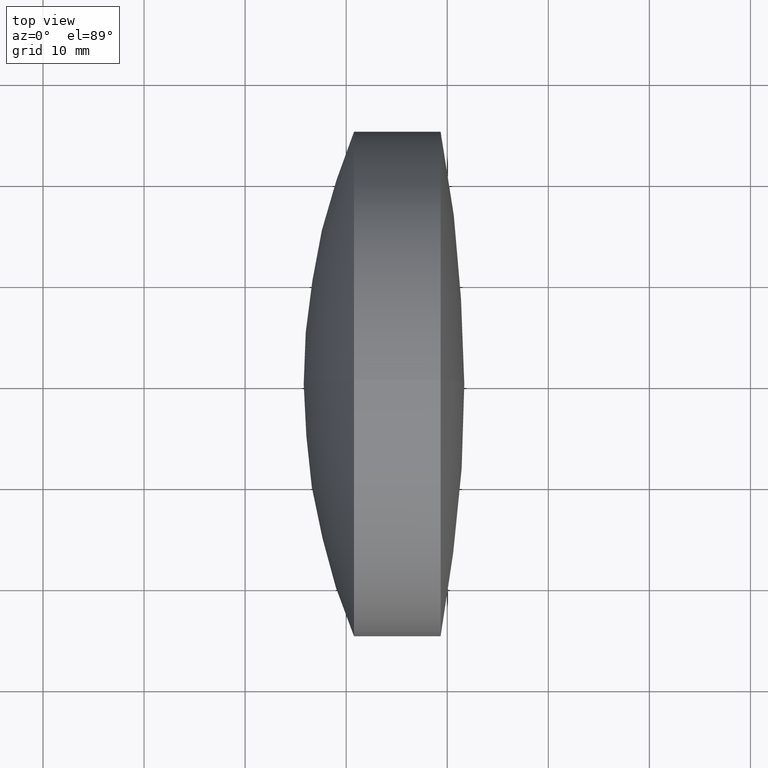
[diagram: clean part render]
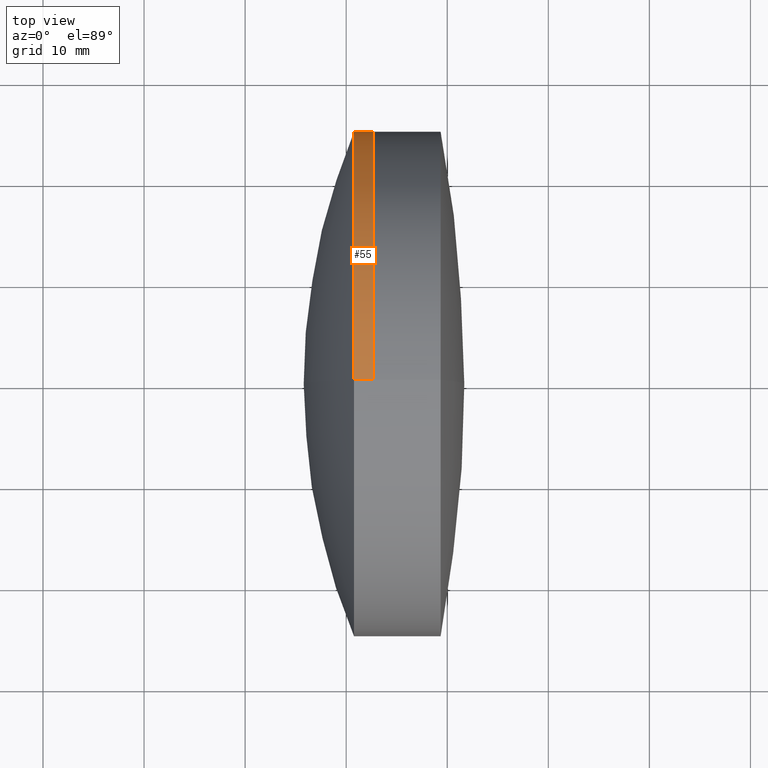
[diagram: same view with one face highlighted and labeled with its STEP entity id]
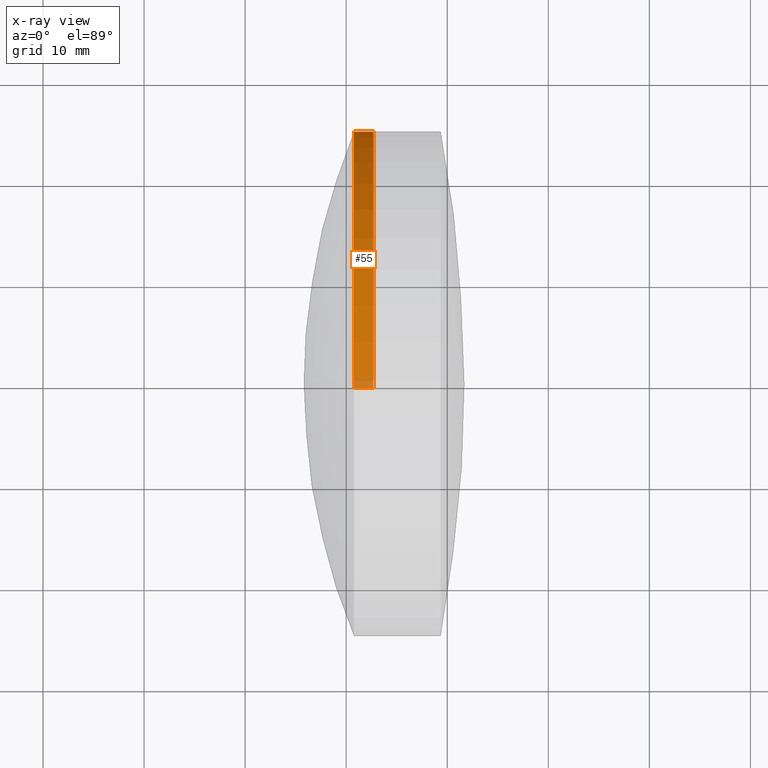
[diagram: x-ray of the same camera — body ghosted, the highlighted face saturated]
A machine part, top view. The second image highlights one B-rep face of the part: STEP entity #55.
The next image is the same camera in x-ray: the body ghosted, the highlighted face saturated — about 3% of this face is hidden behind the body in this view.
In plain terms, the highlighted cylindrical surface (partial cylindrical patch) has radius 25 mm, axis along (-1, -0, -0).
Its self-contained STEP definition (entity closure, byte-faithful):
#2 = CARTESIAN_POINT ( 'NONE',  ( 222.6946538294740800, 3.061616997868383000E-015, -25.00000000000000000 ) ) ;
#7 = VECTOR ( 'NONE', #322, 1000.000000000000000 ) ;
#12 = AXIS2_PLACEMENT_3D ( 'NONE', #345, #269, #17 ) ;
#14 = CIRCLE ( 'NONE', #323, 24.99999999999999300 ) ;
#17 = DIRECTION ( 'NONE',  ( 0.0000000000000000000, 0.0000000000000000000, 1.000000000000000000 ) ) ;
#26 = DIRECTION ( 'NONE',  ( -1.000000000000000000, -0.0000000000000000000, -0.0000000000000000000 ) ) ;
#27 = VERTEX_POINT ( 'NONE', #341 ) ;
#34 = ORIENTED_EDGE ( 'NONE', *, *, #177, .T. ) ;
#55 = ADVANCED_FACE ( 'NONE', ( #176 ), #339, .T. ) ;
#59 = LINE ( 'NONE', #240, #7 ) ;
#60 = VERTEX_POINT ( 'NONE', #65 ) ;
#65 = CARTESIAN_POINT ( 'NONE',  ( 220.7738858347917100, 3.061616997868383800E-015, -25.00000000000001400 ) ) ;
#93 = ORIENTED_EDGE ( 'NONE', *, *, #293, .T. ) ;
#102 = DIRECTION ( 'NONE',  ( 0.0000000000000000000, 0.0000000000000000000, 1.000000000000000000 ) ) ;
#111 = ORIENTED_EDGE ( 'NONE', *, *, #311, .F. ) ;
#128 = VERTEX_POINT ( 'NONE', #284 ) ;
#134 = DIRECTION ( 'NONE',  ( 0.0000000000000000000, 0.0000000000000000000, 1.000000000000000000 ) ) ;
#142 = EDGE_CURVE ( 'NONE', #128, #60, #14, .T. ) ;
#176 = FACE_OUTER_BOUND ( 'NONE', #203, .T. ) ;
#177 = EDGE_CURVE ( 'NONE', #27, #321, #294, .T. ) ;
#203 = EDGE_LOOP ( 'NONE', ( #34, #93, #249, #111 ) ) ;
#204 = VECTOR ( 'NONE', #26, 1000.000000000000000 ) ;
#228 = CARTESIAN_POINT ( 'NONE',  ( 124.5233095260452400, 0.0000000000000000000, 24.99999999999999300 ) ) ;
#240 = CARTESIAN_POINT ( 'NONE',  ( 124.5233095260452400, 3.061616997868382300E-015, -24.99999999999999300 ) ) ;
#246 = CARTESIAN_POINT ( 'NONE',  ( 220.7738858347917100, 0.0000000000000000000, 0.0000000000000000000 ) ) ;
#249 = ORIENTED_EDGE ( 'NONE', *, *, #142, .F. ) ;
#255 = CARTESIAN_POINT ( 'NONE',  ( 124.5233095260452400, 0.0000000000000000000, 0.0000000000000000000 ) ) ;
#269 = DIRECTION ( 'NONE',  ( -1.000000000000000000, -0.0000000000000000000, -0.0000000000000000000 ) ) ;
#284 = CARTESIAN_POINT ( 'NONE',  ( 220.7738858347917100, 0.0000000000000000000, 25.00000000000000700 ) ) ;
#293 = EDGE_CURVE ( 'NONE', #321, #60, #59, .T. ) ;
#294 = CIRCLE ( 'NONE', #12, 24.99999999999999600 ) ;
#298 = DIRECTION ( 'NONE',  ( -1.000000000000000000, -0.0000000000000000000, -0.0000000000000000000 ) ) ;
#311 = EDGE_CURVE ( 'NONE', #27, #128, #324, .T. ) ;
#321 = VERTEX_POINT ( 'NONE', #2 ) ;
#322 = DIRECTION ( 'NONE',  ( -1.000000000000000000, -0.0000000000000000000, -0.0000000000000000000 ) ) ;
#323 = AXIS2_PLACEMENT_3D ( 'NONE', #246, #331, #134 ) ;
#324 = LINE ( 'NONE', #228, #204 ) ;
#326 = AXIS2_PLACEMENT_3D ( 'NONE', #255, #298, #102 ) ;
#331 = DIRECTION ( 'NONE',  ( -1.000000000000000000, -0.0000000000000000000, -0.0000000000000000000 ) ) ;
#339 = CYLINDRICAL_SURFACE ( 'NONE', #326, 24.99999999999999300 ) ;
#341 = CARTESIAN_POINT ( 'NONE',  ( 222.6946538294740800, 0.0000000000000000000, 24.99999999999999600 ) ) ;
#345 = CARTESIAN_POINT ( 'NONE',  ( 222.6946538294740800, 0.0000000000000000000, 0.0000000000000000000 ) ) ;